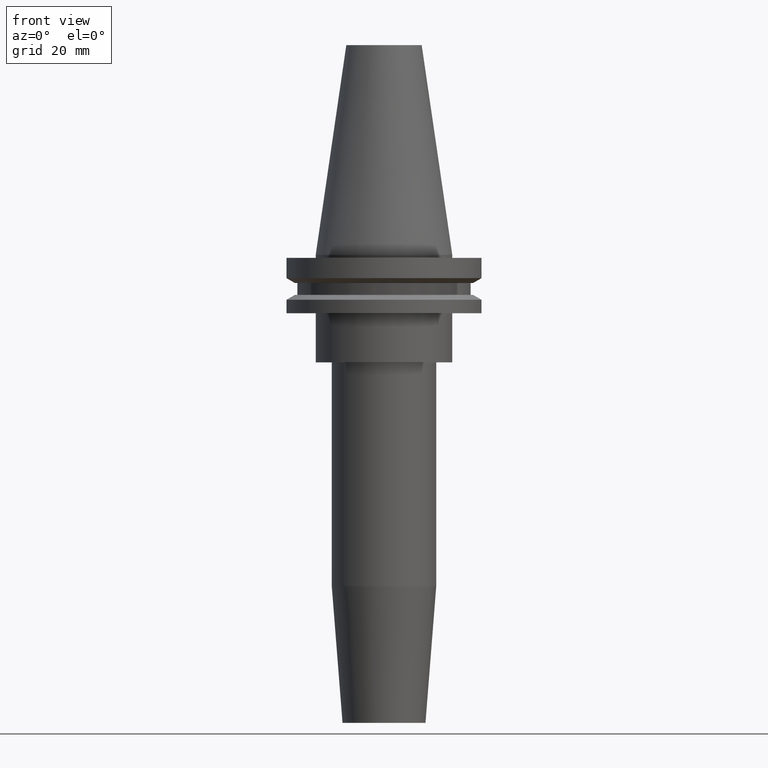
[diagram: clean part render]
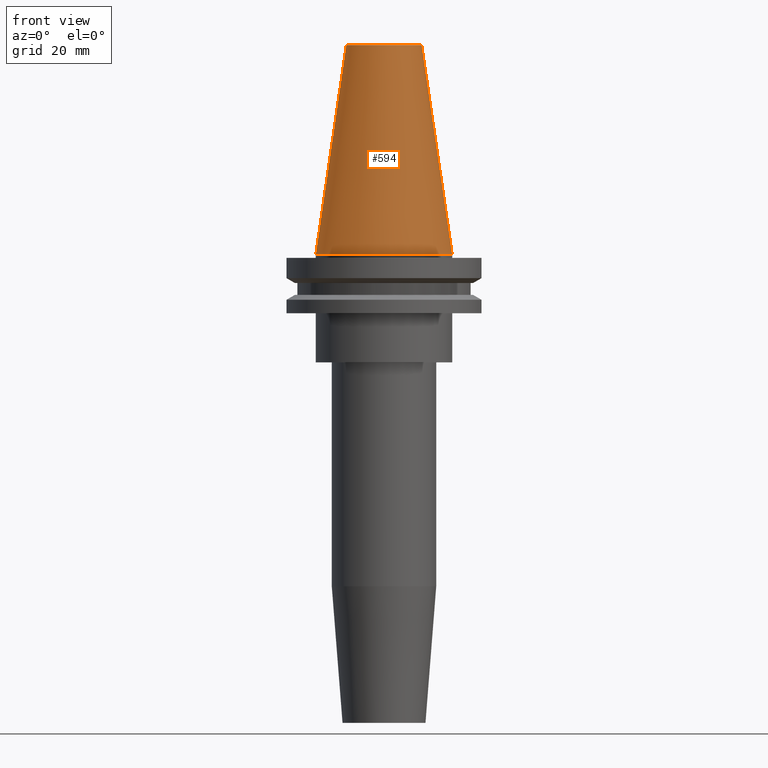
[diagram: same view with one face highlighted and labeled with its STEP entity id]
A machine part, front view. The second image highlights one B-rep face of the part: STEP entity #594.
In plain terms, the highlighted conical surface has half-angle 8.297 deg.
Its self-contained STEP definition (entity closure, byte-faithful):
#6 = CARTESIAN_POINT ( 'NONE',  ( 12.27178102086201150, 2.112318622904291439E-15, 68.25000000000000000 ) ) ;
#26 = DIRECTION ( 'NONE',  ( 0.1443082272672999711, 1.767266086135276757E-17, -0.9895327864921755756 ) ) ;
#42 = DIRECTION ( 'NONE',  ( 1.000000000000000000, 0.000000000000000000, 0.000000000000000000 ) ) ;
#48 = DIRECTION ( 'NONE',  ( -0.000000000000000000, -0.000000000000000000, 1.000000000000000000 ) ) ;
#100 = VERTEX_POINT ( 'NONE', #134 ) ;
#101 = CIRCLE ( 'NONE', #382, 22.22500000000000142 ) ;
#107 = CARTESIAN_POINT ( 'NONE',  ( -22.22500000000000142, 0.000000000000000000, 0.000000000000000000 ) ) ;
#134 = CARTESIAN_POINT ( 'NONE',  ( 22.22500000000000142, 2.721777511104992849E-15, 0.000000000000000000 ) ) ;
#183 = AXIS2_PLACEMENT_3D ( 'NONE', #707, #48, #450 ) ;
#185 = DIRECTION ( 'NONE',  ( -0.000000000000000000, -0.000000000000000000, 1.000000000000000000 ) ) ;
#191 = DIRECTION ( 'NONE',  ( -1.000000000000000000, 0.000000000000000000, 0.000000000000000000 ) ) ;
#209 = VECTOR ( 'NONE', #26, 999.9999999999998863 ) ;
#214 = CARTESIAN_POINT ( 'NONE',  ( -12.27178102086201150, 0.000000000000000000, 68.25000000000000000 ) ) ;
#223 = EDGE_CURVE ( 'NONE', #517, #100, #294, .T. ) ;
#228 = DIRECTION ( 'NONE',  ( -0.1443082272672999711, 0.000000000000000000, -0.9895327864921755756 ) ) ;
#238 = CIRCLE ( 'NONE', #183, 12.27178102086201150 ) ;
#266 = EDGE_CURVE ( 'NONE', #476, #369, #498, .T. ) ;
#294 = LINE ( 'NONE', #560, #209 ) ;
#317 = EDGE_LOOP ( 'NONE', ( #666, #395, #362, #623 ) ) ;
#362 = ORIENTED_EDGE ( 'NONE', *, *, #266, .T. ) ;
#369 = VERTEX_POINT ( 'NONE', #107 ) ;
#382 = AXIS2_PLACEMENT_3D ( 'NONE', #632, #185, #42 ) ;
#395 = ORIENTED_EDGE ( 'NONE', *, *, #716, .F. ) ;
#426 = CARTESIAN_POINT ( 'NONE',  ( -22.22500000000000142, 0.000000000000000000, 0.000000000000000000 ) ) ;
#450 = DIRECTION ( 'NONE',  ( 1.000000000000000000, 0.000000000000000000, 0.000000000000000000 ) ) ;
#476 = VERTEX_POINT ( 'NONE', #214 ) ;
#498 = LINE ( 'NONE', #426, #646 ) ;
#512 = CARTESIAN_POINT ( 'NONE',  ( 0.000000000000000000, 0.000000000000000000, 0.000000000000000000 ) ) ;
#517 = VERTEX_POINT ( 'NONE', #6 ) ;
#560 = CARTESIAN_POINT ( 'NONE',  ( 22.22500000000000142, 2.721777511104992849E-15, 0.000000000000000000 ) ) ;
#594 = ADVANCED_FACE ( 'NONE', ( #789 ), #696, .T. ) ;
#623 = ORIENTED_EDGE ( 'NONE', *, *, #699, .T. ) ;
#632 = CARTESIAN_POINT ( 'NONE',  ( 0.000000000000000000, 0.000000000000000000, 0.000000000000000000 ) ) ;
#646 = VECTOR ( 'NONE', #228, 999.9999999999998863 ) ;
#654 = DIRECTION ( 'NONE',  ( 0.000000000000000000, 0.000000000000000000, -1.000000000000000000 ) ) ;
#666 = ORIENTED_EDGE ( 'NONE', *, *, #223, .F. ) ;
#696 = CONICAL_SURFACE ( 'NONE', #741, 22.22500000000000142, 0.1448138465474119174 ) ;
#699 = EDGE_CURVE ( 'NONE', #369, #100, #101, .T. ) ;
#707 = CARTESIAN_POINT ( 'NONE',  ( 0.000000000000000000, 0.000000000000000000, 68.25000000000000000 ) ) ;
#716 = EDGE_CURVE ( 'NONE', #476, #517, #238, .T. ) ;
#741 = AXIS2_PLACEMENT_3D ( 'NONE', #512, #654, #191 ) ;
#789 = FACE_OUTER_BOUND ( 'NONE', #317, .T. ) ;